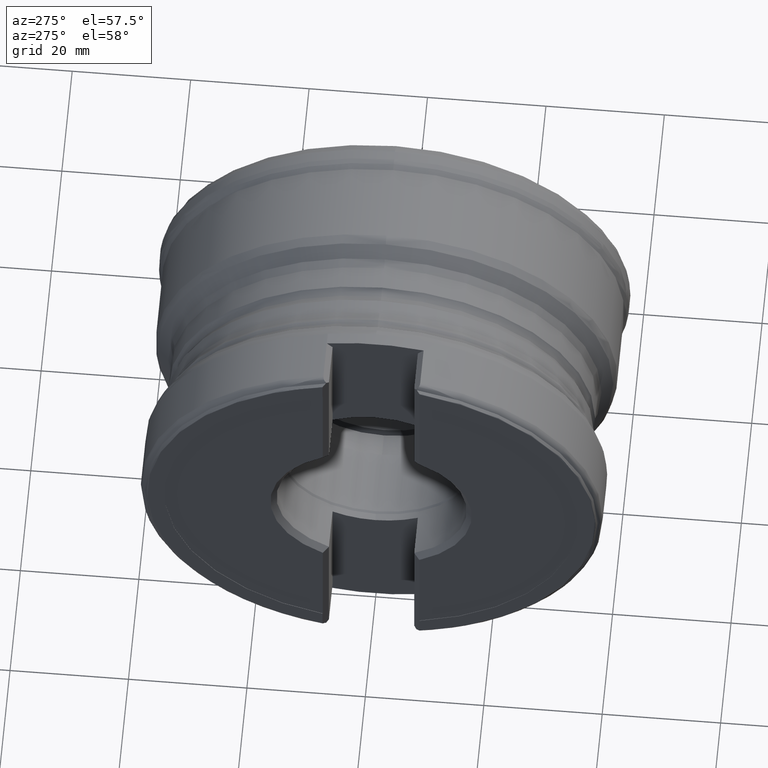
[diagram: clean part render]
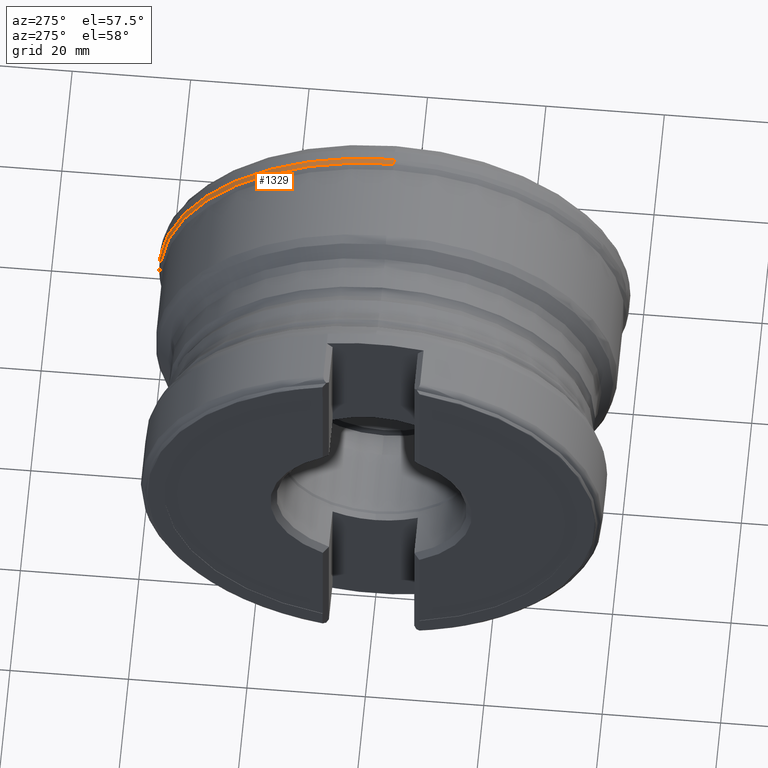
[diagram: same view with one face highlighted and labeled with its STEP entity id]
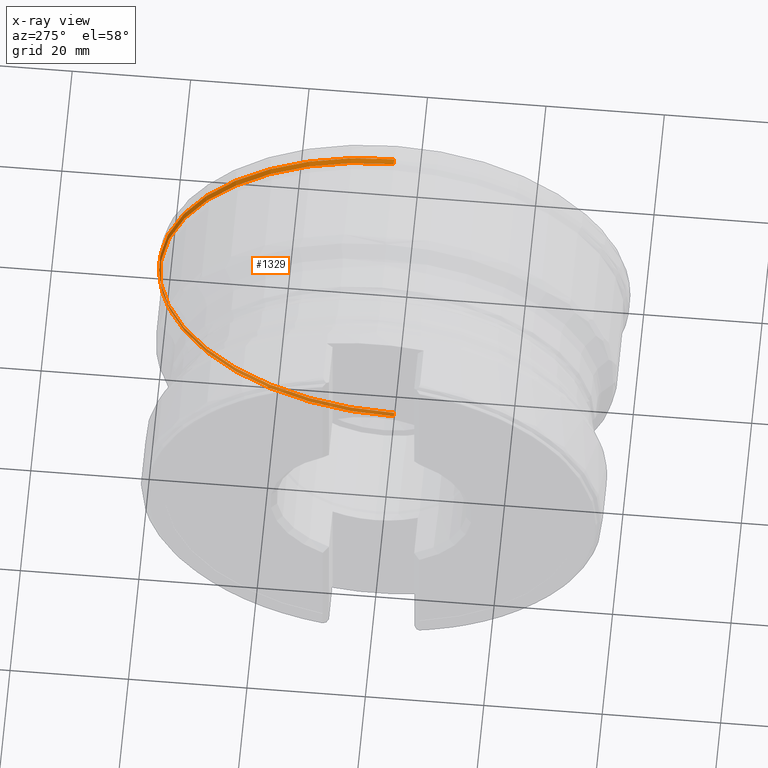
[diagram: x-ray of the same camera — body ghosted, the highlighted face saturated]
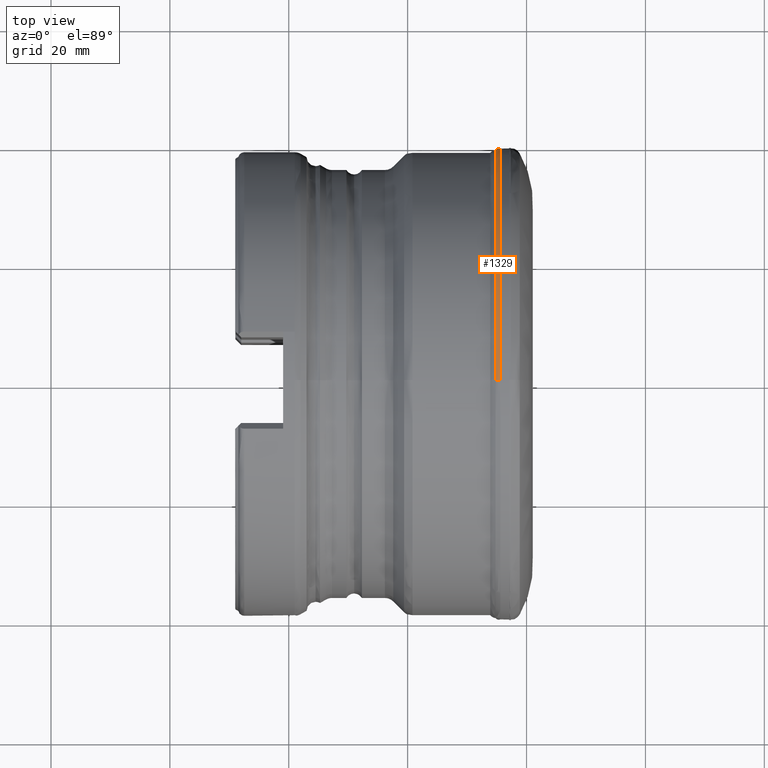
[diagram: same view with one face highlighted and labeled with its STEP entity id]
A machine part, auxiliary view. The second image highlights one B-rep face of the part: STEP entity #1329.
The next image is the same camera in x-ray: the body ghosted, the highlighted face saturated — about 40% of this face is hidden behind the body in this view.
A second angle (top view) of the same face is appended — the face is thin or edge-on in the first view.
In plain terms, the highlighted face is a freeform B-spline surface patch.
Its self-contained STEP definition (entity closure, byte-faithful):
#36 = ORIENTED_EDGE ( 'NONE', *, *, #878, .T. ) ;
#277 = CARTESIAN_POINT ( 'NONE',  ( -4.392167465122311000, -1.018019865918682100E-008, 39.70757088922665900 ) ) ;
#357 = CARTESIAN_POINT ( 'NONE',  ( -4.392167465122311000, -1.018019865918682100E-008, 39.70757088922665900 ) ) ;
#474 = CARTESIAN_POINT ( 'NONE',  ( -4.392167465326095600, 0.0000000000000000000, 0.0000000000000000000 ) ) ;
#478 = EDGE_CURVE ( 'NONE', #1838, #902, #2496, .T. ) ;
#483 = DIRECTION ( 'NONE',  ( -1.000000000000000000, -1.092186853245263400E-017, 0.0000000000000000000 ) ) ;
#493 = DIRECTION ( 'NONE',  ( 2.184373706464834000E-017, -1.000000000000000000, 0.0000000000000000000 ) ) ;
#516 = ORIENTED_EDGE ( 'NONE', *, *, #2196, .F. ) ;
#614 = CARTESIAN_POINT ( 'NONE',  ( -4.958712147082798600, 0.0000000000000000000, 39.62409002113829400 ) ) ;
#649 = CARTESIAN_POINT ( 'NONE',  ( -5.214839420320237700, 0.0000000000000000000, 39.49226245350111200 ) ) ;
#808 = CARTESIAN_POINT ( 'NONE',  ( -4.392167465081554300, -3.565486866214442400E-009, -39.70757088915111400 ) ) ;
#878 = EDGE_CURVE ( 'NONE', #1377, #1838, #1567, .T. ) ;
#902 = VERTEX_POINT ( 'NONE', #1554 ) ;
#942 = CARTESIAN_POINT ( 'NONE',  ( -5.214839419267889300, 0.0000000000000000000, 0.0000000000000000000 ) ) ;
#951 = DIRECTION ( 'NONE',  ( -1.000000000000000000, -1.098141362499293000E-017, 0.0000000000000000000 ) ) ;
#961 = DIRECTION ( 'NONE',  ( 0.0000000000000000000, -1.000000000000000000, 0.0000000000000000000 ) ) ;
#968 = EDGE_CURVE ( 'NONE', #2173, #1377, #2438, .T. ) ;
#1024 = CARTESIAN_POINT ( 'NONE',  ( -4.680036296434566100, 0.0000000000000000000, -39.69702463525892700 ) ) ;
#1226 = AXIS2_PLACEMENT_3D ( 'NONE', #474, #483, #493 ) ;
#1329 = ADVANCED_FACE ( 'NONE', ( #1424 ), #1677, .T. ) ;
#1377 = VERTEX_POINT ( 'NONE', #277 ) ;
#1424 = FACE_OUTER_BOUND ( 'NONE', #1625, .T. ) ;
#1466 = CARTESIAN_POINT ( 'NONE',  ( -4.958712147217808800, 0.0000000000000000000, -39.62409002110592100 ) ) ;
#1554 = CARTESIAN_POINT ( 'NONE',  ( -5.214839420530708500, 0.0000000000000000000, -39.49226245342173800 ) ) ;
#1567 = CIRCLE ( 'NONE', #1226, 39.70757088960441900 ) ;
#1625 = EDGE_LOOP ( 'NONE', ( #36, #2630, #516, #1899 ) ) ;
#1673 = CARTESIAN_POINT ( 'NONE',  ( -4.680036296382720500, 0.0000000000000000000, 39.69702463525516100 ) ) ;
#1677 =( BOUNDED_SURFACE ( )  B_SPLINE_SURFACE ( 3, 3, ( 
 ( #1923, #1862, #2037, #2046 ),
 ( #2054, #2068, #2082, #2090 ),
 ( #2100, #2106, #2113, #2126 ),
 ( #2133, #2145, #2156, #2270 ) ),
 .UNSPECIFIED., .F., .F., .T. ) 
 B_SPLINE_SURFACE_WITH_KNOTS ( ( 4, 4 ),
 ( 4, 4 ),
 ( 0.0000000000000000000, 1.000000000000000000 ),
 ( 0.0000000000000000000, 1.000000000000000000 ),
 .UNSPECIFIED. ) 
 GEOMETRIC_REPRESENTATION_ITEM ( )  RATIONAL_B_SPLINE_SURFACE ( (
 ( 1.000000000000000000, 0.3333333333333330400, 0.3333333333333330400, 1.000000000000000000),
 ( 0.9662914947556520100, 0.3220971649185510600, 0.3220971649185510600, 0.9662914947556520100),
 ( 0.9662914947556520100, 0.3220971649185510600, 0.3220971649185510600, 0.9662914947556520100),
 ( 1.000000000000000000, 0.3333333333333330400, 0.3333333333333330400, 1.000000000000000000) ) ) 
 REPRESENTATION_ITEM ( '' )  SURFACE ( )  );
#1831 = CARTESIAN_POINT ( 'NONE',  ( -4.392167465081554300, -3.565486866214442400E-009, -39.70757088915111400 ) ) ;
#1838 = VERTEX_POINT ( 'NONE', #1831 ) ;
#1862 = CARTESIAN_POINT ( 'NONE',  ( -4.196868992000000600, 79.40991498500002900, -39.70495749299999500 ) ) ;
#1899 = ORIENTED_EDGE ( 'NONE', *, *, #968, .T. ) ;
#1923 = CARTESIAN_POINT ( 'NONE',  ( -4.196868992000000600, 0.0000000000000000000, -39.70495749299999500 ) ) ;
#2037 = CARTESIAN_POINT ( 'NONE',  ( -4.196868992000000600, 79.40991498500002900, 39.70495749299999500 ) ) ;
#2046 = CARTESIAN_POINT ( 'NONE',  ( -4.196868992000000600, 0.0000000000000000000, 39.70495749299999500 ) ) ;
#2054 = CARTESIAN_POINT ( 'NONE',  ( -4.619261686000000600, 0.0000000000000000000, -39.73176496599999300 ) ) ;
#2068 = CARTESIAN_POINT ( 'NONE',  ( -4.619261686000001500, 79.46352993100003900, -39.73176496600000000 ) ) ;
#2082 = CARTESIAN_POINT ( 'NONE',  ( -4.619261686000001500, 79.46352993100003900, 39.73176496600000000 ) ) ;
#2090 = CARTESIAN_POINT ( 'NONE',  ( -4.619261686000000600, 0.0000000000000000000, 39.73176496599999300 ) ) ;
#2100 = CARTESIAN_POINT ( 'NONE',  ( -5.028713431999999100, 0.0000000000000000000, -39.62460388600001000 ) ) ;
#2106 = CARTESIAN_POINT ( 'NONE',  ( -5.028713432000000000, 79.24920777200000500, -39.62460388600000300 ) ) ;
#2113 = CARTESIAN_POINT ( 'NONE',  ( -5.028713432000000000, 79.24920777200000500, 39.62460388600000300 ) ) ;
#2126 = CARTESIAN_POINT ( 'NONE',  ( -5.028713431999999100, 0.0000000000000000000, 39.62460388600001000 ) ) ;
#2133 = CARTESIAN_POINT ( 'NONE',  ( -5.383818209999999400, 0.0000000000000000000, -39.39431097300000300 ) ) ;
#2145 = CARTESIAN_POINT ( 'NONE',  ( -5.383818209999999400, 78.78862194600000600, -39.39431097300000300 ) ) ;
#2150 = CARTESIAN_POINT ( 'NONE',  ( -5.214839420320237700, 0.0000000000000000000, 39.49226245350111200 ) ) ;
#2156 = CARTESIAN_POINT ( 'NONE',  ( -5.383818209999999400, 78.78862194600000600, 39.39431097300000300 ) ) ;
#2173 = VERTEX_POINT ( 'NONE', #649 ) ;
#2196 = EDGE_CURVE ( 'NONE', #2173, #902, #2720, .T. ) ;
#2270 = CARTESIAN_POINT ( 'NONE',  ( -5.383818209999999400, 0.0000000000000000000, 39.39431097300000300 ) ) ;
#2438 =( BOUNDED_CURVE ( )  B_SPLINE_CURVE ( 3, ( #2150, #614, #1673, #357 ),
 .UNSPECIFIED., .F., .F. ) 
 B_SPLINE_CURVE_WITH_KNOTS ( ( 4, 4 ),
 ( 0.1581160945398070400, 0.8418839061518577100 ),
 .UNSPECIFIED. ) 
 CURVE ( )  GEOMETRIC_REPRESENTATION_ITEM ( )  RATIONAL_B_SPLINE_CURVE ( ( 0.9865386370096778100, 0.9707786157364840500, 0.9707786157524261900, 0.9865386370575038900 ) ) 
 REPRESENTATION_ITEM ( '' )  );
#2465 = AXIS2_PLACEMENT_3D ( 'NONE', #942, #951, #961 ) ;
#2496 =( BOUNDED_CURVE ( )  B_SPLINE_CURVE ( 3, ( #808, #1024, #1466, #2611 ),
 .UNSPECIFIED., .F., .F. ) 
 B_SPLINE_CURVE_WITH_KNOTS ( ( 4, 4 ),
 ( 0.1581160938172314600, 0.8418839056402617200 ),
 .UNSPECIFIED. ) 
 CURVE ( )  GEOMETRIC_REPRESENTATION_ITEM ( )  RATIONAL_B_SPLINE_CURVE ( ( 0.9865386370596411800, 0.9707786157482757300, 0.9707786157357716200, 0.9865386370221288500 ) ) 
 REPRESENTATION_ITEM ( '' )  );
#2611 = CARTESIAN_POINT ( 'NONE',  ( -5.214839420530708500, 0.0000000000000000000, -39.49226245342173800 ) ) ;
#2630 = ORIENTED_EDGE ( 'NONE', *, *, #478, .T. ) ;
#2720 = CIRCLE ( 'NONE', #2465, 39.49226245389796500 ) ;